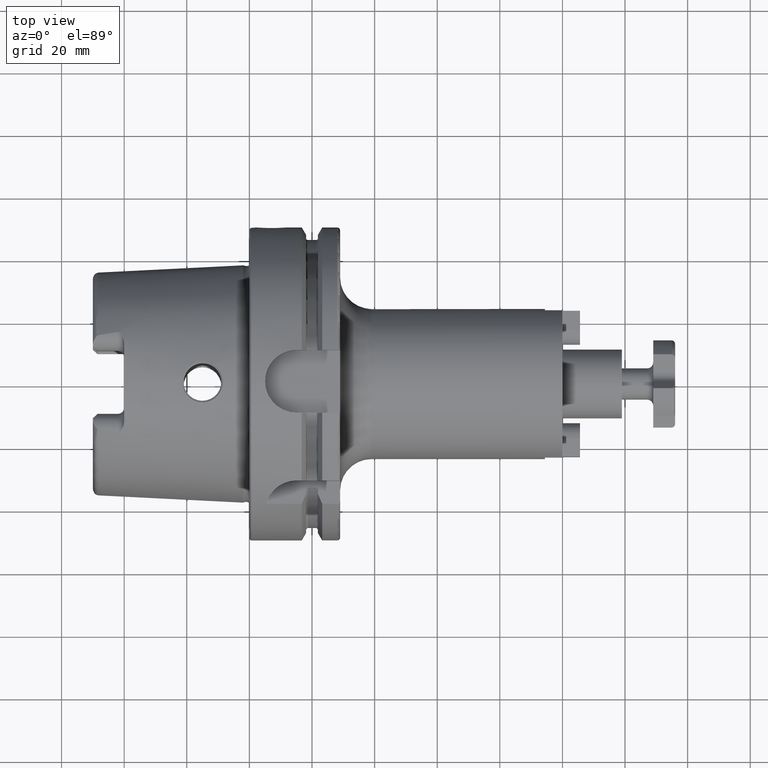
[diagram: clean part render]
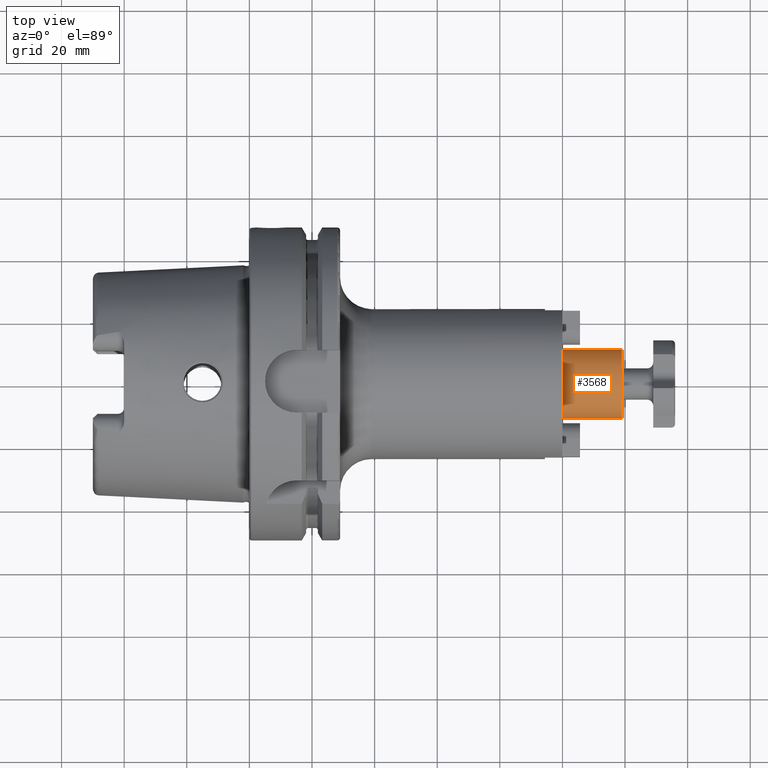
[diagram: same view with one face highlighted and labeled with its STEP entity id]
A machine part, top view. The second image highlights one B-rep face of the part: STEP entity #3568.
In plain terms, the highlighted cylindrical surface (bore or boss wall) has radius 11 mm, axis along (1, 0, 0).
Its self-contained STEP definition (entity closure, byte-faithful):
#777=CYLINDRICAL_SURFACE('',#3980,11.);
#848=FACE_OUTER_BOUND('',#1033,.T.);
#1033=EDGE_LOOP('',(#2707,#2708,#2709,#2710));
#1246=LINE('',#5655,#1436);
#1436=VECTOR('',#4544,11.);
#1618=CIRCLE('',#3979,11.);
#1619=CIRCLE('',#3981,11.);
#1862=VERTEX_POINT('',#5650);
#1863=VERTEX_POINT('',#5653);
#2188=EDGE_CURVE('',#1862,#1862,#1618,.T.);
#2189=EDGE_CURVE('',#1863,#1863,#1619,.T.);
#2190=EDGE_CURVE('',#1863,#1862,#1246,.T.);
#2707=ORIENTED_EDGE('',*,*,#2189,.F.);
#2708=ORIENTED_EDGE('',*,*,#2190,.T.);
#2709=ORIENTED_EDGE('',*,*,#2188,.T.);
#2710=ORIENTED_EDGE('',*,*,#2190,.F.);
#3568=ADVANCED_FACE('',(#848),#777,.T.);
#3979=AXIS2_PLACEMENT_3D('',#5651,#4538,#4539);
#3980=AXIS2_PLACEMENT_3D('',#5652,#4540,#4541);
#3981=AXIS2_PLACEMENT_3D('',#5654,#4542,#4543);
#4538=DIRECTION('center_axis',(1.,0.,0.));
#4539=DIRECTION('ref_axis',(0.,0.,-1.));
#4540=DIRECTION('center_axis',(1.,0.,0.));
#4541=DIRECTION('ref_axis',(0.,1.,0.));
#4542=DIRECTION('center_axis',(1.,0.,0.));
#4543=DIRECTION('ref_axis',(0.,0.,-1.));
#4544=DIRECTION('',(-1.,0.,0.));
#5650=CARTESIAN_POINT('',(100.,-11.,-1.34711147906209E-15));
#5651=CARTESIAN_POINT('Origin',(100.,0.,0.));
#5652=CARTESIAN_POINT('Origin',(109.5,0.,0.));
#5653=CARTESIAN_POINT('',(119.,-11.,-1.34711147906209E-15));
#5654=CARTESIAN_POINT('Origin',(119.,0.,0.));
#5655=CARTESIAN_POINT('',(109.5,-11.,-1.34711147906209E-15));